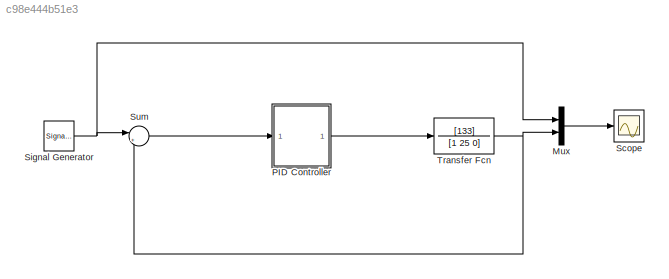
MODEL slx_c98e444b51e3
KIND model
CONFIG AbsTol = auto
CONFIG EnableMultiTasking = off
CONFIG FixedStep = auto
CONFIG MaxStep = auto
CONFIG MinStep = auto
CONFIG RelTol = 1e-3
CONFIG SampleTimeConstraint = Unconstrained
CONFIG Solver = VariableStepAuto
CONFIG SolverName = VariableStepAuto
CONFIG StartTime = 0.0
CONFIG StopTime = 10
BLOCK [Mux] Mux
  DisplayOption = bar
  Inputs = 2
  Ports = [2, 1]
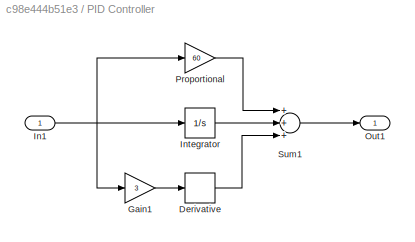
BLOCK [SubSystem] PID Controller
  Ports = [1, 1]
  RequestExecContextInheritance = off
  Variant = off
BLOCK [Derivative] PID Controller/Derivative
BLOCK [Gain] PID Controller/Gain1
  Gain = 3
  OutDataTypeStr = Inherit: Inherit via internal rule
  ParamDataTypeStr = Inherit: Inherit via internal rule
  SaturateOnIntegerOverflow = off
BLOCK [Inport] PID Controller/In1
  IconDisplay = Port number
BLOCK [Integrator] PID Controller/Integrator
  Ports = [1, 1]
BLOCK [Outport] PID Controller/Out1
  IconDisplay = Port number
BLOCK [Gain] PID Controller/Proportional
  Gain = 60
  OutDataTypeStr = Inherit: Inherit via internal rule
  ParamDataTypeStr = Inherit: Inherit via internal rule
  SaturateOnIntegerOverflow = off
BLOCK [Sum] PID Controller/Sum1
  InputSameDT = off
  Inputs = +++
  OutDataTypeStr = Inherit: Inherit via internal rule
  Ports = [3, 1]
  SaturateOnIntegerOverflow = off
BLOCK [Scope] Scope
  NumInputPorts = 1
  Ports = [1]
  ScopeSpecificationString = Simulink.scopes.TimeScopeBlockCfg('CurrentConfiguration', extmgr.ConfigurationSet(extmgr.Configuration('Core','General UI',true),extmgr.Configuration('Core','Source UI',true),extmgr.Configuration('Sources','WiredSimulink',true),extmgr.Configuration('Visuals','Time Domain',true,'SerializedDisplays',{struct('MinYLimReal','-3.05685','MaxYLimReal','3.04201','YLabelReal','','MinYLimMag','0.00000','MaxY...<+1380ch>
BLOCK [SignalGenerator] Signal Generator
  Frequency = 0.2
  Ports = [0, 1]
  WaveForm = square
BLOCK [Sum] Sum
  IconShape = round
  InputSameDT = off
  Inputs = |+-
  OutDataTypeStr = Inherit: Inherit via internal rule
  Ports = [2, 1]
  SaturateOnIntegerOverflow = off
BLOCK [TransferFcn] Transfer Fcn
  Denominator = [1 25 0]
  Numerator = [133]
LINE Mux:1 -> Scope:1
LINE PID Controller/Derivative:1 -> PID Controller/Sum1:3
LINE PID Controller/Gain1:1 -> PID Controller/Derivative:1
NET PID Controller/In1:1 -> PID Controller/Gain1:1, PID Controller/Integrator:1, PID Controller/Proportional:1
LINE PID Controller/Integrator:1 -> PID Controller/Sum1:2
LINE PID Controller/Proportional:1 -> PID Controller/Sum1:1
LINE PID Controller/Sum1:1 -> PID Controller/Out1:1
LINE PID Controller:1 -> Transfer Fcn:1
NET Signal Generator:1 -> Mux:1, Sum:1
LINE Sum:1 -> PID Controller:1
NET Transfer Fcn:1 -> Mux:2, Sum:2
note: NET lines group one-source signal fan-out (src -> all destinations, sorted); 1:1 wires keep LINE
